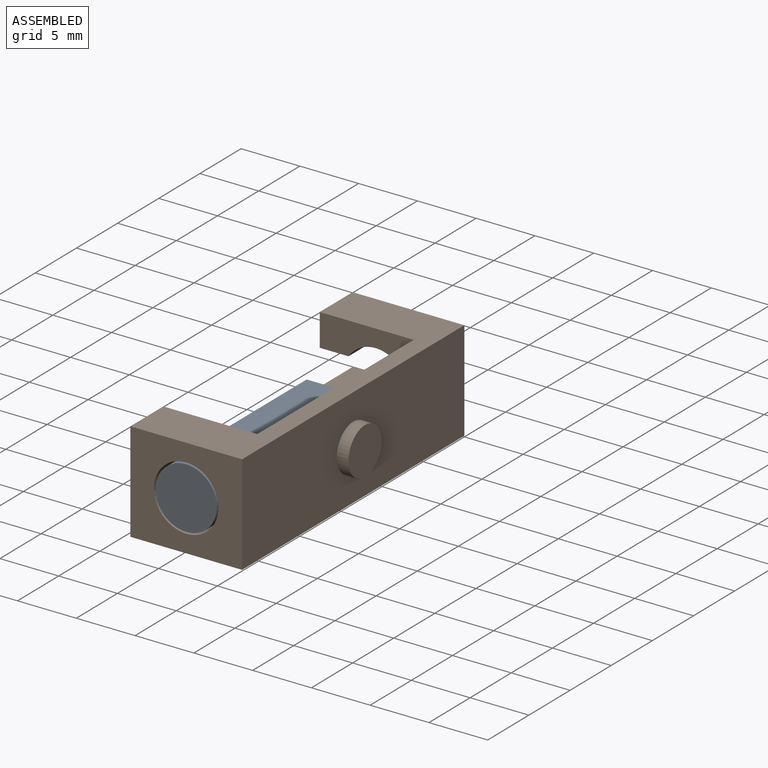
[diagram: assembled view]
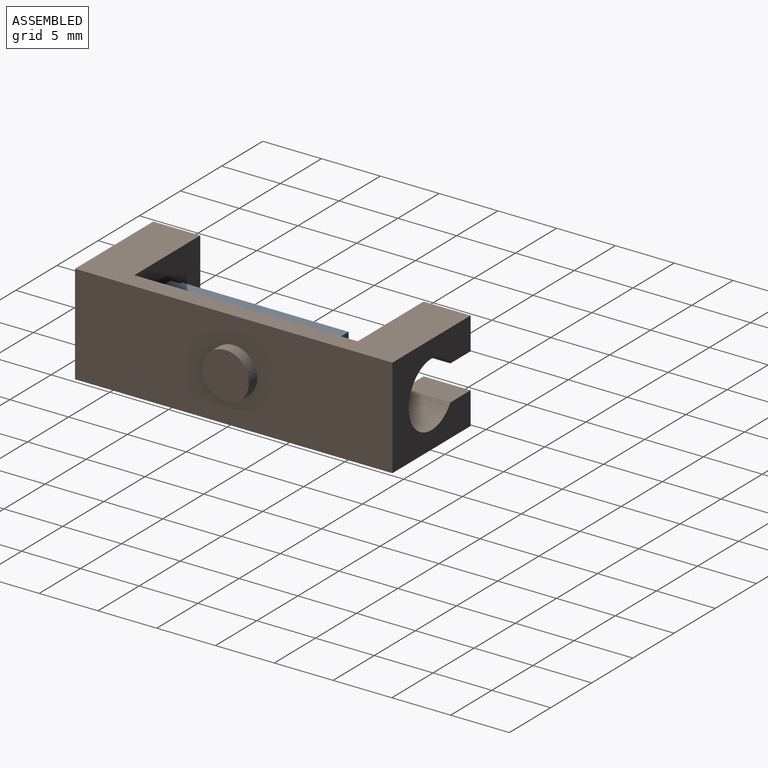
[diagram: assembled view, second angle]
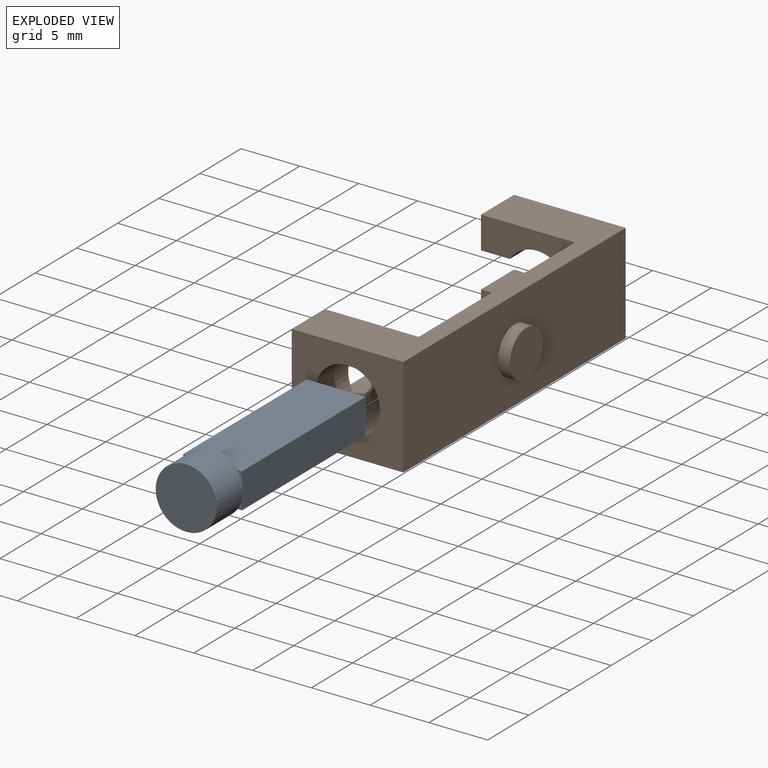
[diagram: exploded view]
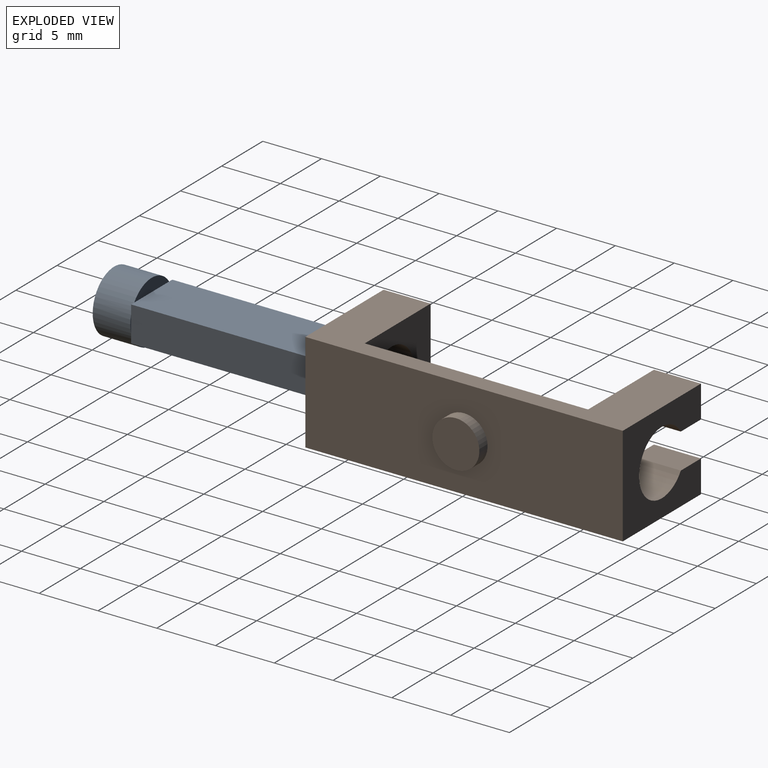
[diagram: exploded view, second angle]
ASSEMBLY  parts=2 mates=2
PART A: 15 faces, bbox 5.2x18.2x5.2 mm
  f0: plane 1.43x0.1mm, normal (0,1,0), area 0.1mm2, adj f3,f10
  f1: plane 4.25x1.1mm, normal (0,1,0), area 3.3mm2, adj f3,f11
  f2: plane 4.25x1.1mm, normal (0,1,0), area 3.3mm2, adj f3,f13
  f3: cylinder r=2.6mm len=5.2mm, axis (0,1,0), area 52.3mm2, adj f0,f1,f2,f4,f5,f6,f7,f8
  f4: plane 5.2x5.2mm, normal (0,-1,0), area 21.2mm2, adj f3
  f5: plane 1.43x0.1mm, normal (0,1,0), area 0.1mm2, adj f3,f12
  f6: plane 0.79x0.38mm, normal (0,-1,0), area 0.1mm2, adj f3,f10,f13
  f7: plane 0.79x0.38mm, normal (0,-1,0), area 0.1mm2, adj f3,f10,f11
  f8: plane 0.79x0.38mm, normal (0,-1,0), area 0.1mm2, adj f3,f11,f12
  f9: plane 0.79x0.38mm, normal (0,-1,0), area 0.1mm2, adj f3,f12,f13
  f10: plane 15x3mm, normal (1,0,0), area 45mm2, adj f0,f6,f7,f11,f13,f14
  f11: plane 15x5mm, normal (0,0,1), area 75mm2, adj f1,f7,f8,f10,f12,f14
  f12: plane 15x3mm, normal (-1,0,0), area 45mm2, adj f5,f8,f9,f11,f13,f14
  f13: plane 15x5mm, normal (0,0,-1), area 75mm2, adj f2,f6,f9,f10,f12,f14
  f14: plane 5x3mm, normal (0,1,0), area 15mm2, adj f10,f11,f12,f13
PART B: 18 faces, bbox 10.5x27x8.5 mm
  f0: plane 19x7mm, normal (-1,0,0), area 133mm2, adj f1,f3,f8,f15
  f1: plane 19x8mm, normal (0,0,1), area 152mm2, adj f0,f4,f8,f9,f15
  f2: plane 27x8.5mm, normal (1,0,0), area 216.9mm2, adj f3,f5,f6,f14,f16
  f3: plane 27x9.5mm, normal (0,0,1), area 104.5mm2, adj f0,f2,f4,f6,f8,f10,f14,f15
  f4: plane 27x8.5mm, normal (-1,0,0), area 73.5mm2, adj f1,f3,f5,f6,f8,f9,f13,f14
  f5: plane 27x9.5mm, normal (0,0,-1), area 256.5mm2, adj f2,f4,f6,f14
  f6: plane 9.5x8.5mm, normal (0,-1,0), area 57mm2, adj f2,f3,f4,f5,f7
  f7: cylinder r=2.75mm len=5.5mm, axis (0,-1,0), area 69.1mm2, adj f6,f8
  f8: plane 8x7mm, normal (0,1,0), area 32.2mm2, adj f0,f1,f3,f4,f7
  f9: plane 4.75x1.25mm, normal (0,-1,0), area 3.9mm2, adj f1,f4,f12,f13
  f10: plane 4x2.75mm, normal (-1,0,0), area 11mm2, adj f3,f11,f14,f15
  f11: plane 4x2.45mm, normal (0,0,-1), area 9.8mm2, adj f10,f12,f14,f15
  f12: cylinder r=2.75mm len=5.5mm, axis (0,-1,0), area 56.4mm2, adj f9,f11,f13,f14,f15
  f13: plane 4x2.45mm, normal (0,0,1), area 9.8mm2, adj f4,f9,f12,f14
  f14: plane 9.5x8.5mm, normal (0,1,0), area 50.6mm2, adj f2,f3,f4,f5,f10,f11,f12,f13
  f15: plane 8x7mm, normal (0,-1,0), area 21.9mm2, adj f0,f1,f3,f10,f11,f12
  f16: cylinder r=2mm len=4mm, axis (-1,0,0), area 12.6mm2, adj f2,f17
  f17: plane 4x4mm, normal (1,0,0), area 12.6mm2, adj f16
PLACE A t=(10.7,5.56,0.8)mm
PLACE B t=(10.7,2.36,0.8)mm
MATE planar B.f6 <-> A.f3  axis (0,-1,0) through (5.95,2.36,5.05)mm
MATE cylindrical A.f3 <-> B.f7  axis (0,1,0) through (10.7,2.36,0.8)mm
